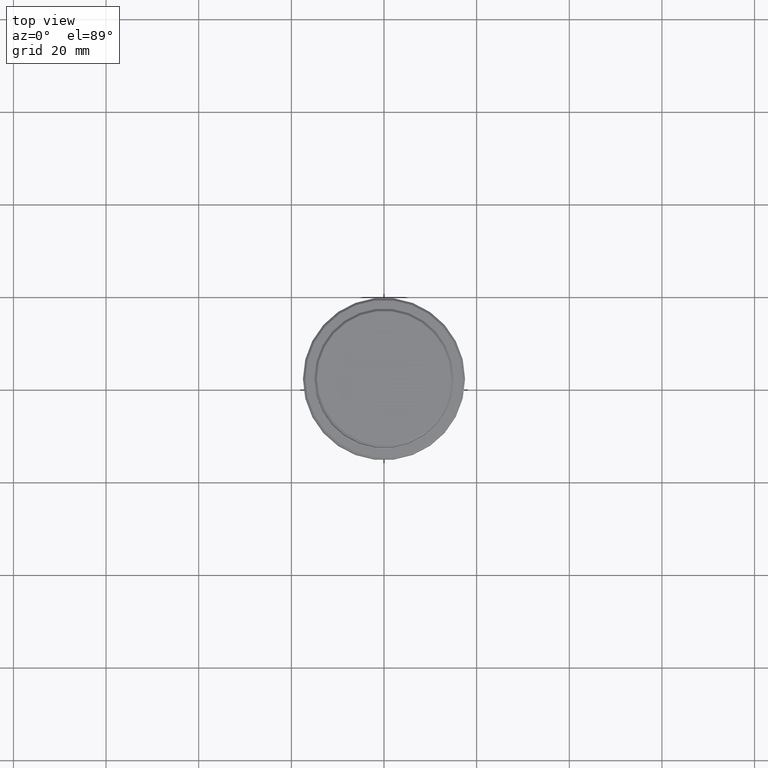
[diagram: clean part render]
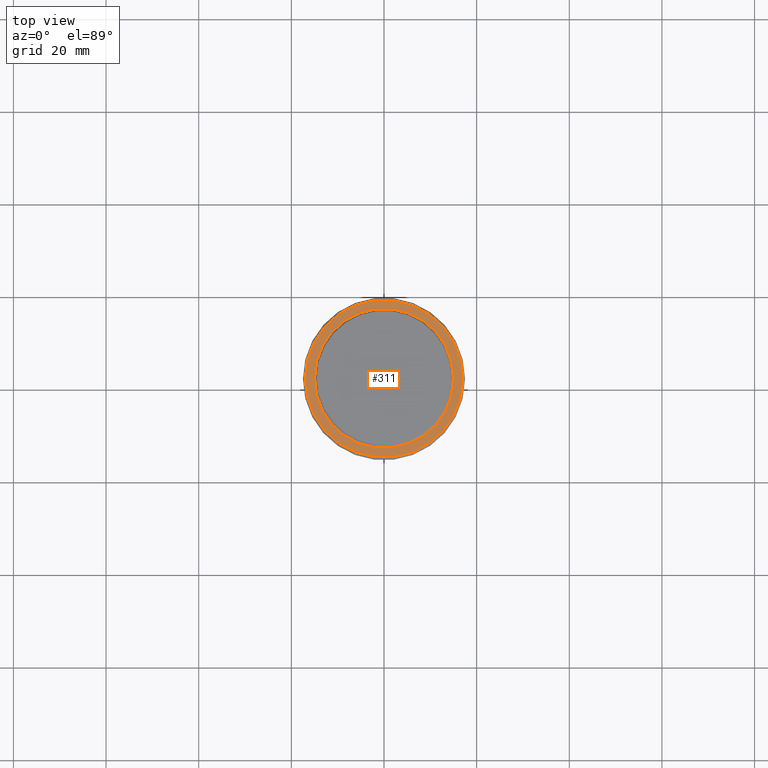
[diagram: same view with one face highlighted and labeled with its STEP entity id]
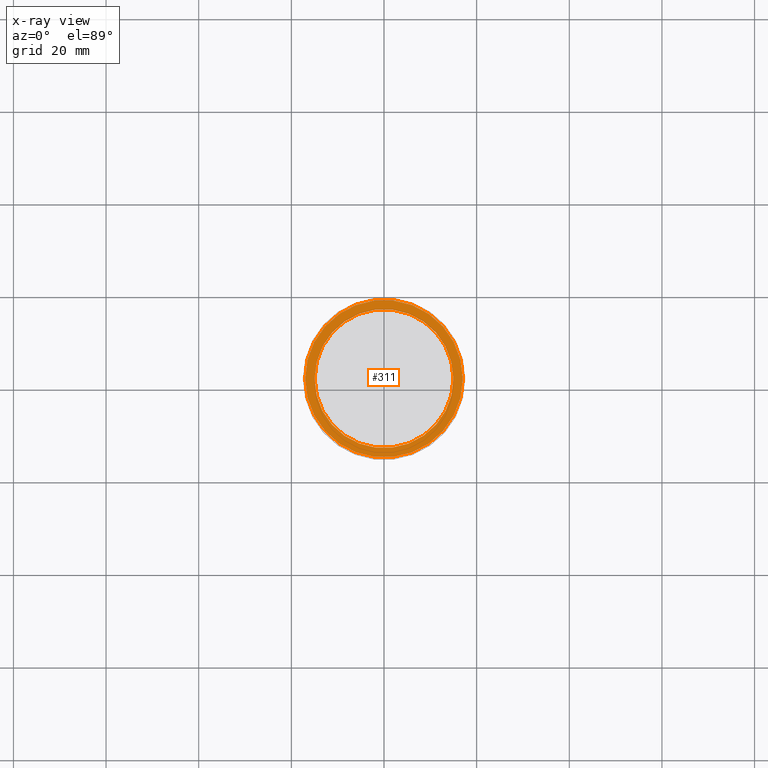
[diagram: x-ray of the same camera — body ghosted, the highlighted face saturated]
A machine part, top view. The second image highlights one B-rep face of the part: STEP entity #311.
The next image is the same camera in x-ray: the body ghosted, the highlighted face saturated — about 0% of this face is hidden behind the body in this view.
In plain terms, the highlighted planar face has unit normal (0, -0, 1).
Its self-contained STEP definition (entity closure, byte-faithful):
#34 = DIRECTION ( 'NONE',  ( 1.000000000000000000, 0.000000000000000000, 0.000000000000000000 ) ) ;
#42 = VERTEX_POINT ( 'NONE', #983 ) ;
#85 = FACE_OUTER_BOUND ( 'NONE', #1035, .T. ) ;
#129 = DIRECTION ( 'NONE',  ( -0.000000000000000000, -0.000000000000000000, 1.000000000000000000 ) ) ;
#169 = FACE_BOUND ( 'NONE', #951, .T. ) ;
#175 = CARTESIAN_POINT ( 'NONE',  ( 17.00000000000000000, 2.112515728529184067E-15, -9.000000000000000000 ) ) ;
#187 = CIRCLE ( 'NONE', #961, 17.00000000000000000 ) ;
#241 = CARTESIAN_POINT ( 'NONE',  ( 0.000000000000000000, 0.000000000000000000, -9.000000000000000000 ) ) ;
#309 = VERTEX_POINT ( 'NONE', #175 ) ;
#311 = ADVANCED_FACE ( 'NONE', ( #85, #169 ), #596, .T. ) ;
#381 = DIRECTION ( 'NONE',  ( 0.000000000000000000, 0.000000000000000000, -1.000000000000000000 ) ) ;
#402 = EDGE_CURVE ( 'NONE', #811, #42, #726, .T. ) ;
#408 = DIRECTION ( 'NONE',  ( 0.000000000000000000, -0.000000000000000000, 1.000000000000000000 ) ) ;
#491 = ORIENTED_EDGE ( 'NONE', *, *, #402, .T. ) ;
#497 = DIRECTION ( 'NONE',  ( 0.000000000000000000, 0.000000000000000000, -1.000000000000000000 ) ) ;
#526 = CIRCLE ( 'NONE', #1331, 14.99999999999999289 ) ;
#562 = DIRECTION ( 'NONE',  ( 1.000000000000000000, 0.000000000000000000, 0.000000000000000000 ) ) ;
#570 = CARTESIAN_POINT ( 'NONE',  ( 0.000000000000000000, 0.000000000000000000, -9.000000000000000000 ) ) ;
#596 = PLANE ( 'NONE',  #1193 ) ;
#619 = CARTESIAN_POINT ( 'NONE',  ( -14.99999999999999289, 1.836970198721028800E-15, -9.000000000000000000 ) ) ;
#650 = EDGE_CURVE ( 'NONE', #309, #676, #842, .T. ) ;
#676 = VERTEX_POINT ( 'NONE', #1119 ) ;
#687 = ORIENTED_EDGE ( 'NONE', *, *, #650, .T. ) ;
#704 = AXIS2_PLACEMENT_3D ( 'NONE', #1280, #381, #1381 ) ;
#719 = DIRECTION ( 'NONE',  ( 1.000000000000000000, 0.000000000000000000, 0.000000000000000000 ) ) ;
#726 = CIRCLE ( 'NONE', #704, 14.99999999999999289 ) ;
#733 = EDGE_CURVE ( 'NONE', #42, #811, #526, .T. ) ;
#796 = AXIS2_PLACEMENT_3D ( 'NONE', #241, #129, #1339 ) ;
#803 = ORIENTED_EDGE ( 'NONE', *, *, #733, .T. ) ;
#811 = VERTEX_POINT ( 'NONE', #619 ) ;
#829 = CARTESIAN_POINT ( 'NONE',  ( 0.000000000000000000, 14.49999999999999467, -9.000000000000000000 ) ) ;
#842 = CIRCLE ( 'NONE', #796, 17.00000000000000000 ) ;
#884 = DIRECTION ( 'NONE',  ( -0.000000000000000000, -0.000000000000000000, 1.000000000000000000 ) ) ;
#951 = EDGE_LOOP ( 'NONE', ( #803, #491 ) ) ;
#961 = AXIS2_PLACEMENT_3D ( 'NONE', #1316, #884, #562 ) ;
#971 = EDGE_CURVE ( 'NONE', #676, #309, #187, .T. ) ;
#983 = CARTESIAN_POINT ( 'NONE',  ( 14.99999999999999289, 0.000000000000000000, -9.000000000000000000 ) ) ;
#1028 = ORIENTED_EDGE ( 'NONE', *, *, #971, .T. ) ;
#1035 = EDGE_LOOP ( 'NONE', ( #1028, #687 ) ) ;
#1119 = CARTESIAN_POINT ( 'NONE',  ( -17.00000000000000000, 0.000000000000000000, -9.000000000000000000 ) ) ;
#1193 = AXIS2_PLACEMENT_3D ( 'NONE', #829, #408, #719 ) ;
#1280 = CARTESIAN_POINT ( 'NONE',  ( 0.000000000000000000, 0.000000000000000000, -9.000000000000000000 ) ) ;
#1316 = CARTESIAN_POINT ( 'NONE',  ( 0.000000000000000000, 0.000000000000000000, -9.000000000000000000 ) ) ;
#1331 = AXIS2_PLACEMENT_3D ( 'NONE', #570, #497, #34 ) ;
#1339 = DIRECTION ( 'NONE',  ( 1.000000000000000000, 0.000000000000000000, 0.000000000000000000 ) ) ;
#1381 = DIRECTION ( 'NONE',  ( 1.000000000000000000, 0.000000000000000000, 0.000000000000000000 ) ) ;